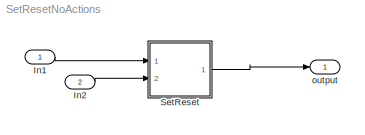
MODEL SetResetNoActions
KIND model
BLOCK [Inport] In1
  IconDisplay = Port number
  OutDataTypeStr = boolean
  SID = 6
BLOCK [Inport] In2
  IconDisplay = Port number
  OutDataTypeStr = boolean
  Port = 2
  SID = 7
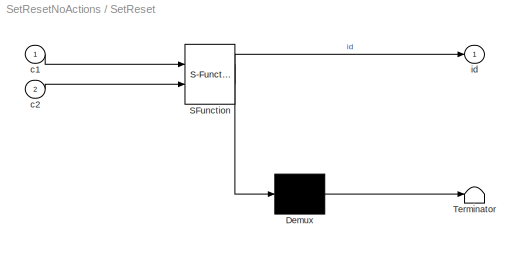
BLOCK [SubSystem] SetReset
  ErrorFcn = Stateflow.Translate.translate
  PermitHierarchicalResolution = ExplicitOnly
  Ports = [2, 1]
  RequestExecContextInheritance = off
  SFBlockType = Chart
  SID = 4
  TreatAsAtomicUnit = on
  Variant = off
BLOCK [Demux] SetReset/ Demux 
  Outputs = 1
  Ports = [1, 1]
  SID = 4::13
BLOCK [S-Function] SetReset/ SFunction 
  EnableBusSupport = on
  FunctionName = sf_sfun
  PortCounts = [2 2]
  Ports = [2, 2]
  SFcnIsStateOwnerBlock = off
  SFunctionDeploymentMode = off
  SID = 4::12
  Tag = Stateflow S-Function SetResetNoActions 1
BLOCK [Terminator] SetReset/ Terminator 
  SID = 4::14
BLOCK [Inport] SetReset/c1
  IconDisplay = Port number
  SID = 4::15
BLOCK [Inport] SetReset/c2
  IconDisplay = Port number
  Port = 2
  SID = 4::16
BLOCK [Outport] SetReset/id
  IconDisplay = Port number
  SID = 4::17
BLOCK [Outport] output
  IconDisplay = Port number
  SID = 5
LINE In1:1 -> SetReset:1
LINE In2:1 -> SetReset:2
LINE SetReset/ Demux :1 -> SetReset/ Terminator :1
LINE SetReset/ SFunction :1 -> SetReset/ Demux :1
LINE SetReset/ SFunction :2 -> SetReset/id:1
LINE SetReset/c1:1 -> SetReset/ SFunction :1
LINE SetReset/c2:1 -> SetReset/ SFunction :2
LINE SetReset:1 -> output:1
CHART SetReset states=2 transitions=3
  STATE_LABEL 'Off/\\nen:id=0'
  STATE_LABEL 'On/\\nen:id=1'
